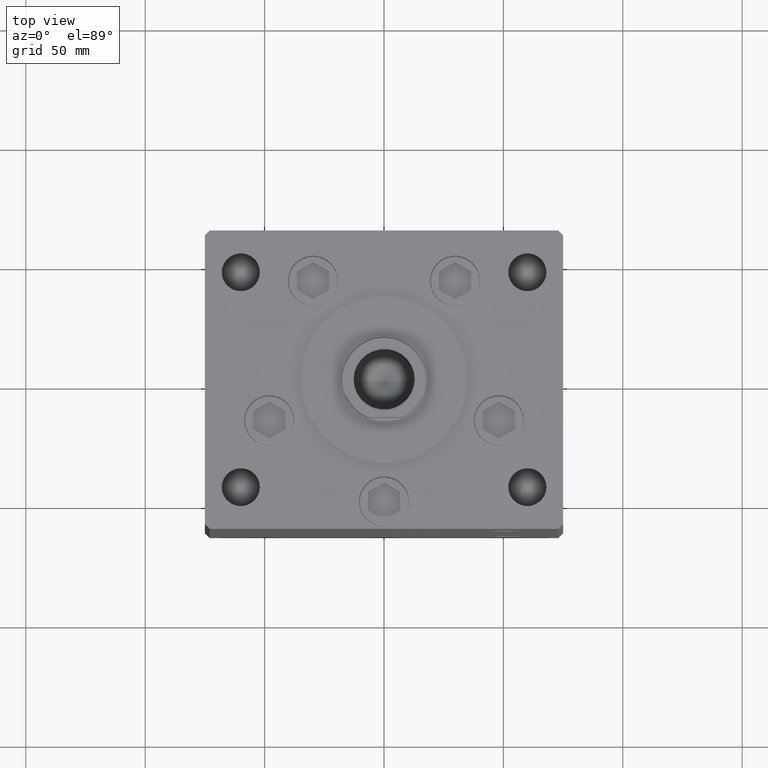
[diagram: clean part render]
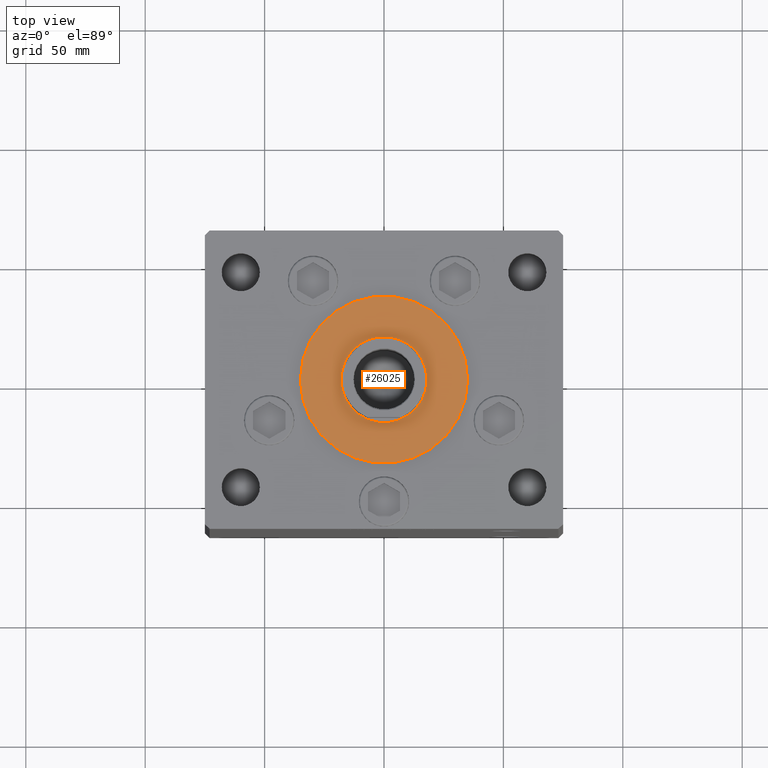
[diagram: same view with one face highlighted and labeled with its STEP entity id]
A machine part, top view. The second image highlights one B-rep face of the part: STEP entity #26025.
In plain terms, the highlighted planar face has unit normal (0, 0, 1).
Its self-contained STEP definition (entity closure, byte-faithful):
#1208 = CARTESIAN_POINT ( 'NONE',  ( 35.00000000000000711, -2.652630106891490698E-15, 2.000000000000000000 ) ) ;
#1729 = CARTESIAN_POINT ( 'NONE',  ( 0.000000000000000000, -6.938893903907228378E-15, 2.000000000000000000 ) ) ;
#2047 = AXIS2_PLACEMENT_3D ( 'NONE', #26367, #18707, #27135 ) ;
#3804 = EDGE_CURVE ( 'NONE', #51071, #49984, #27960, .T. ) ;
#3941 = CARTESIAN_POINT ( 'NONE',  ( 0.000000000000000000, -6.938893903907228378E-15, 2.000000000000000000 ) ) ;
#4901 = ORIENTED_EDGE ( 'NONE', *, *, #13019, .T. ) ;
#6551 = ORIENTED_EDGE ( 'NONE', *, *, #50483, .F. ) ;
#8038 = VERTEX_POINT ( 'NONE', #39455 ) ;
#9291 = DIRECTION ( 'NONE',  ( 1.000000000000000000, 0.000000000000000000, 0.000000000000000000 ) ) ;
#9888 = DIRECTION ( 'NONE',  ( 1.000000000000000000, 0.000000000000000000, 0.000000000000000000 ) ) ;
#11059 = FACE_BOUND ( 'NONE', #43526, .T. ) ;
#11231 = CARTESIAN_POINT ( 'NONE',  ( -35.00000000000000711, -6.938893903907228378E-15, 2.000000000000000000 ) ) ;
#13019 = EDGE_CURVE ( 'NONE', #49984, #51071, #49149, .T. ) ;
#13066 = DIRECTION ( 'NONE',  ( 0.000000000000000000, 0.000000000000000000, 1.000000000000000000 ) ) ;
#13133 = DIRECTION ( 'NONE',  ( 1.000000000000000000, 0.000000000000000000, 0.000000000000000000 ) ) ;
#14189 = EDGE_CURVE ( 'NONE', #8038, #31730, #39895, .T. ) ;
#16641 = CARTESIAN_POINT ( 'NONE',  ( -18.00000000000000000, -4.734529665441992555E-15, 2.000000000000000000 ) ) ;
#16674 = DIRECTION ( 'NONE',  ( 0.000000000000000000, 0.000000000000000000, 1.000000000000000000 ) ) ;
#17021 = AXIS2_PLACEMENT_3D ( 'NONE', #1729, #13066, #9888 ) ;
#18707 = DIRECTION ( 'NONE',  ( 0.000000000000000000, 0.000000000000000000, 1.000000000000000000 ) ) ;
#19480 = DIRECTION ( 'NONE',  ( 0.000000000000000000, 0.000000000000000000, 1.000000000000000000 ) ) ;
#22048 = ORIENTED_EDGE ( 'NONE', *, *, #14189, .F. ) ;
#23186 = DIRECTION ( 'NONE',  ( 1.000000000000000000, 0.000000000000000000, -0.000000000000000000 ) ) ;
#23441 = FACE_OUTER_BOUND ( 'NONE', #39242, .T. ) ;
#26025 = ADVANCED_FACE ( 'NONE', ( #11059, #23441 ), #40010, .T. ) ;
#26367 = CARTESIAN_POINT ( 'NONE',  ( 0.000000000000000000, -6.938893903907228378E-15, 2.000000000000000000 ) ) ;
#27135 = DIRECTION ( 'NONE',  ( 1.000000000000000000, 0.000000000000000000, 0.000000000000000000 ) ) ;
#27960 = CIRCLE ( 'NONE', #17021, 35.00000000000000711 ) ;
#28356 = AXIS2_PLACEMENT_3D ( 'NONE', #3941, #19480, #23186 ) ;
#29198 = DIRECTION ( 'NONE',  ( 0.000000000000000000, 0.000000000000000000, 1.000000000000000000 ) ) ;
#30179 = ORIENTED_EDGE ( 'NONE', *, *, #3804, .T. ) ;
#31730 = VERTEX_POINT ( 'NONE', #16641 ) ;
#32295 = AXIS2_PLACEMENT_3D ( 'NONE', #36680, #16674, #9291 ) ;
#33145 = AXIS2_PLACEMENT_3D ( 'NONE', #44993, #29198, #13133 ) ;
#36680 = CARTESIAN_POINT ( 'NONE',  ( 0.000000000000000000, -6.938893903907228378E-15, 2.000000000000000000 ) ) ;
#39242 = EDGE_LOOP ( 'NONE', ( #4901, #30179 ) ) ;
#39455 = CARTESIAN_POINT ( 'NONE',  ( 18.00000000000000000, -6.938893903907228378E-15, 2.000000000000000000 ) ) ;
#39895 = CIRCLE ( 'NONE', #2047, 18.00000000000000000 ) ;
#40010 = PLANE ( 'NONE',  #28356 ) ;
#43526 = EDGE_LOOP ( 'NONE', ( #22048, #6551 ) ) ;
#44993 = CARTESIAN_POINT ( 'NONE',  ( 0.000000000000000000, -6.938893903907228378E-15, 2.000000000000000000 ) ) ;
#49149 = CIRCLE ( 'NONE', #33145, 35.00000000000000711 ) ;
#49984 = VERTEX_POINT ( 'NONE', #11231 ) ;
#50483 = EDGE_CURVE ( 'NONE', #31730, #8038, #50831, .T. ) ;
#50831 = CIRCLE ( 'NONE', #32295, 18.00000000000000000 ) ;
#51071 = VERTEX_POINT ( 'NONE', #1208 ) ;